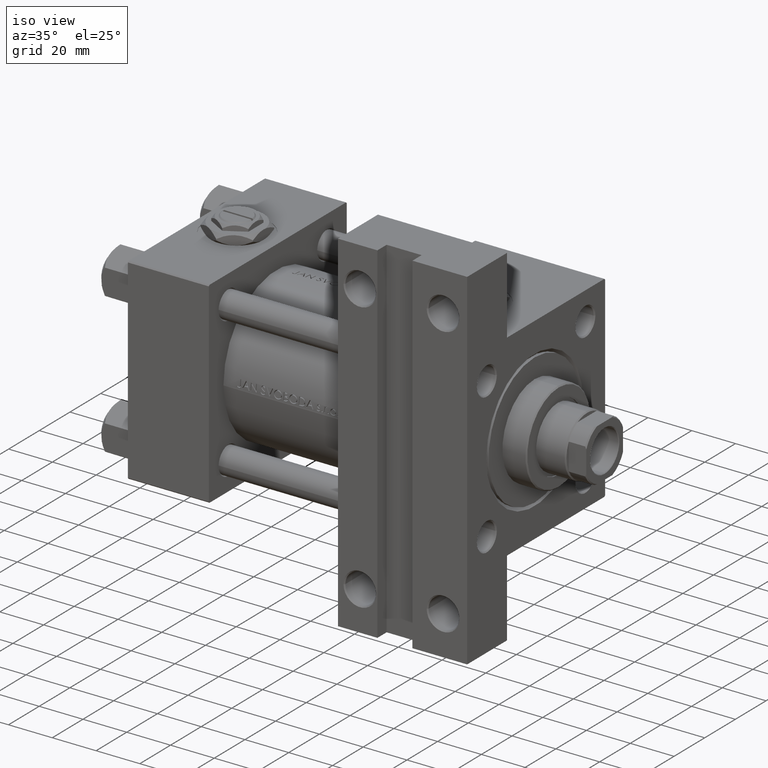
[diagram: clean part render]
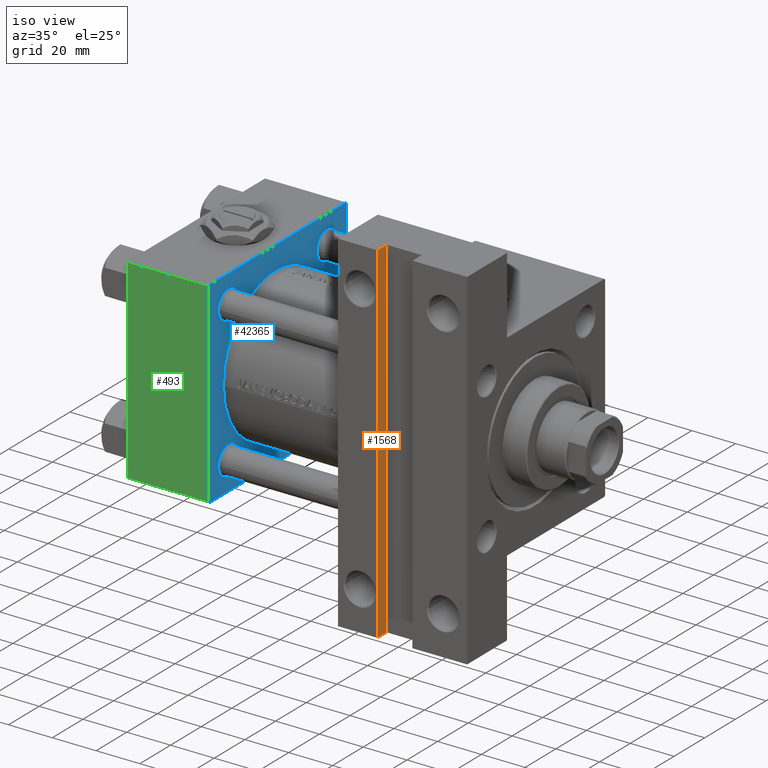
[diagram: same view with three faces highlighted in distinct colors, each labeled with its STEP entity id]
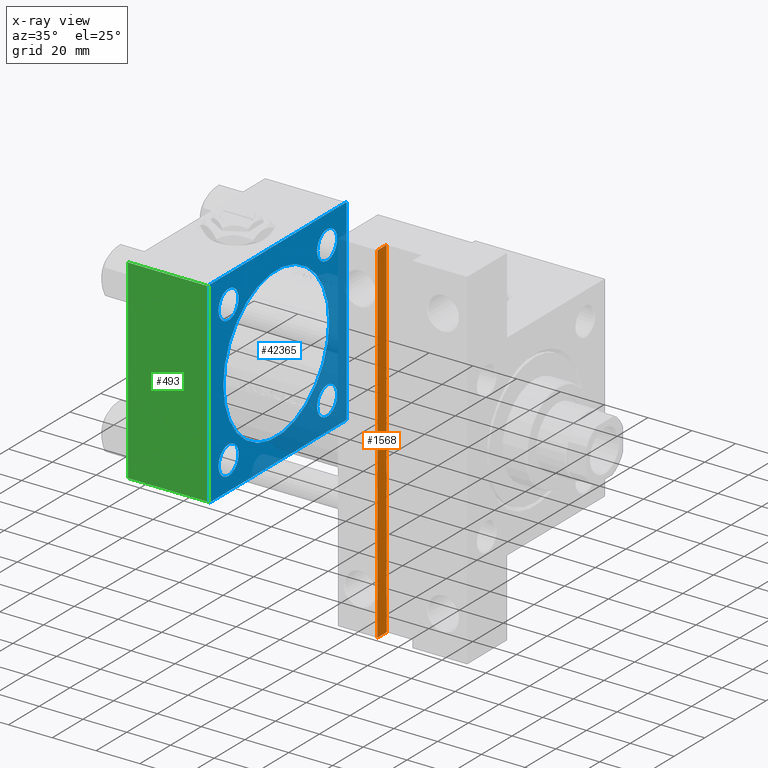
[diagram: x-ray of the same camera — body ghosted, the three highlighted faces saturated]
A machine part, iso view with three faces highlighted in distinct colors.
The next image is the same camera in x-ray (body ghosted, the three faces saturated) — at least one of them is partly hidden behind the body in this view.
Their STEP definitions:

[orange] entity #1568 — the highlighted planar face has unit normal (-1, 0, 0).
#964 = CARTESIAN_POINT ( 'NONE',  ( 113.9999999999999858, 79.99999999999998579, -39.00000000000000000 ) ) ;
#1568 = ADVANCED_FACE ( 'NONE', ( #8367 ), #43071, .F. ) ;
#2350 = DIRECTION ( 'NONE',  ( 0.000000000000000000, 1.000000000000000000, 0.000000000000000000 ) ) ;
#4857 = CARTESIAN_POINT ( 'NONE',  ( 113.9999999999999858, -79.99999999999997158, -39.00000000000000000 ) ) ;
#6117 = CARTESIAN_POINT ( 'NONE',  ( 113.9999999999999858, -79.99999999999997158, -39.00000000000000000 ) ) ;
#7234 = LINE ( 'NONE', #34146, #12975 ) ;
#8270 = EDGE_CURVE ( 'NONE', #25444, #35039, #46247, .T. ) ;
#8367 = FACE_OUTER_BOUND ( 'NONE', #11936, .T. ) ;
#9708 = CARTESIAN_POINT ( 'NONE',  ( 113.9999999999999858, -79.99999999999997158, -39.00000000000000000 ) ) ;
#10248 = ORIENTED_EDGE ( 'NONE', *, *, #37721, .T. ) ;
#10432 = ORIENTED_EDGE ( 'NONE', *, *, #31254, .F. ) ;
#11419 = EDGE_CURVE ( 'NONE', #40653, #39888, #17412, .T. ) ;
#11782 = DIRECTION ( 'NONE',  ( 0.000000000000000000, 1.000000000000000000, 0.000000000000000000 ) ) ;
#11936 = EDGE_LOOP ( 'NONE', ( #27147, #10432, #37205, #10248 ) ) ;
#12513 = CARTESIAN_POINT ( 'NONE',  ( 113.9999999999999858, -79.99999999999997158, -45.00000000000000000 ) ) ;
#12975 = VECTOR ( 'NONE', #48755, 1000.000000000000000 ) ;
#13279 = VECTOR ( 'NONE', #11782, 1000.000000000000000 ) ;
#16767 = DIRECTION ( 'NONE',  ( -0.000000000000000000, -0.000000000000000000, -1.000000000000000000 ) ) ;
#17134 = CARTESIAN_POINT ( 'NONE',  ( 113.9999999999999858, 79.99999999999998579, -45.00000000000000000 ) ) ;
#17412 = LINE ( 'NONE', #6117, #26932 ) ;
#20171 = DIRECTION ( 'NONE',  ( -1.000000000000000000, 0.000000000000000000, 0.000000000000000000 ) ) ;
#20276 = AXIS2_PLACEMENT_3D ( 'NONE', #4857, #20171, #35515 ) ;
#20547 = LINE ( 'NONE', #9708, #23210 ) ;
#23210 = VECTOR ( 'NONE', #16767, 1000.000000000000000 ) ;
#23352 = CARTESIAN_POINT ( 'NONE',  ( 113.9999999999999858, -79.99999999999997158, -45.00000000000000000 ) ) ;
#25444 = VERTEX_POINT ( 'NONE', #23352 ) ;
#26932 = VECTOR ( 'NONE', #2350, 1000.000000000000000 ) ;
#27147 = ORIENTED_EDGE ( 'NONE', *, *, #8270, .T. ) ;
#29696 = CARTESIAN_POINT ( 'NONE',  ( 113.9999999999999858, -79.99999999999997158, -39.00000000000000000 ) ) ;
#31254 = EDGE_CURVE ( 'NONE', #39888, #35039, #7234, .T. ) ;
#34146 = CARTESIAN_POINT ( 'NONE',  ( 113.9999999999999858, 79.99999999999998579, -39.00000000000000000 ) ) ;
#35039 = VERTEX_POINT ( 'NONE', #17134 ) ;
#35515 = DIRECTION ( 'NONE',  ( 0.000000000000000000, 0.000000000000000000, 1.000000000000000000 ) ) ;
#37205 = ORIENTED_EDGE ( 'NONE', *, *, #11419, .F. ) ;
#37721 = EDGE_CURVE ( 'NONE', #40653, #25444, #20547, .T. ) ;
#39888 = VERTEX_POINT ( 'NONE', #964 ) ;
#40653 = VERTEX_POINT ( 'NONE', #29696 ) ;
#43071 = PLANE ( 'NONE',  #20276 ) ;
#46247 = LINE ( 'NONE', #12513, #13279 ) ;
#48755 = DIRECTION ( 'NONE',  ( -0.000000000000000000, -0.000000000000000000, -1.000000000000000000 ) ) ;

[blue] entity #42365 — the highlighted planar face has unit normal (-1, 0, -0).
#562 = CARTESIAN_POINT ( 'NONE',  ( 37.00000000000000000, 44.49999999999998579, 45.00000000000001421 ) ) ;
#638 = DIRECTION ( 'NONE',  ( -1.000000000000000000, 0.000000000000000000, -0.000000000000000000 ) ) ;
#1086 = VERTEX_POINT ( 'NONE', #21102 ) ;
#1459 = DIRECTION ( 'NONE',  ( 0.000000000000000000, 7.709882115452476934E-17, -1.000000000000000000 ) ) ;
#2806 = ORIENTED_EDGE ( 'NONE', *, *, #27510, .F. ) ;
#2972 = AXIS2_PLACEMENT_3D ( 'NONE', #9858, #19405, #41549 ) ;
#3576 = EDGE_CURVE ( 'NONE', #9075, #5254, #17828, .T. ) ;
#3578 = FACE_OUTER_BOUND ( 'NONE', #35426, .T. ) ;
#3943 = LINE ( 'NONE', #4687, #11673 ) ;
#4002 = CARTESIAN_POINT ( 'NONE',  ( 37.00000000000000000, -32.14999999999997726, -38.65000000000004832 ) ) ;
#4127 = AXIS2_PLACEMENT_3D ( 'NONE', #29952, #49332, #14113 ) ;
#4268 = EDGE_CURVE ( 'NONE', #30207, #16894, #20298, .T. ) ;
#4687 = CARTESIAN_POINT ( 'NONE',  ( 37.00000000000000000, 44.99999999999998579, -44.49999999999998579 ) ) ;
#4697 = CARTESIAN_POINT ( 'NONE',  ( 37.00000000000000000, -45.00000000000000711, 44.49999999999997158 ) ) ;
#4850 = EDGE_CURVE ( 'NONE', #46053, #18292, #39006, .T. ) ;
#5233 = CARTESIAN_POINT ( 'NONE',  ( 37.00000000000000000, -45.00000000000000711, 45.00000000000000000 ) ) ;
#5254 = VERTEX_POINT ( 'NONE', #32122 ) ;
#5315 = AXIS2_PLACEMENT_3D ( 'NONE', #44251, #6777, #10026 ) ;
#5934 = DIRECTION ( 'NONE',  ( 1.000000000000000000, -0.000000000000000000, 0.000000000000000000 ) ) ;
#6311 = ORIENTED_EDGE ( 'NONE', *, *, #22808, .T. ) ;
#6397 = EDGE_CURVE ( 'NONE', #47960, #30207, #28551, .T. ) ;
#6777 = DIRECTION ( 'NONE',  ( -1.000000000000000000, 0.000000000000000000, -0.000000000000000000 ) ) ;
#7070 = FACE_BOUND ( 'NONE', #45147, .T. ) ;
#7643 = DIRECTION ( 'NONE',  ( 0.000000000000000000, 0.000000000000000000, 1.000000000000000000 ) ) ;
#8382 = DIRECTION ( 'NONE',  ( 0.000000000000000000, 0.000000000000000000, 1.000000000000000000 ) ) ;
#8393 = CARTESIAN_POINT ( 'NONE',  ( 37.00000000000000000, 32.14999999999999147, -32.15000000000000568 ) ) ;
#8585 = EDGE_CURVE ( 'NONE', #14726, #1086, #3943, .T. ) ;
#9075 = VERTEX_POINT ( 'NONE', #28979 ) ;
#9430 = CARTESIAN_POINT ( 'NONE',  ( 37.00000000000000000, 0.000000000000000000, 33.49999999999998579 ) ) ;
#9613 = CARTESIAN_POINT ( 'NONE',  ( 37.00000000000000000, -44.49999999999995737, 45.00000000000000000 ) ) ;
#9678 = AXIS2_PLACEMENT_3D ( 'NONE', #31023, #39062, #8382 ) ;
#9713 = EDGE_CURVE ( 'NONE', #5254, #9075, #45402, .T. ) ;
#9858 = CARTESIAN_POINT ( 'NONE',  ( 37.00000000000000000, 32.14999999999999147, 32.15000000000000568 ) ) ;
#10026 = DIRECTION ( 'NONE',  ( 0.000000000000000000, 0.000000000000000000, 1.000000000000000000 ) ) ;
#10335 = FACE_BOUND ( 'NONE', #19786, .T. ) ;
#10690 = DIRECTION ( 'NONE',  ( 0.000000000000000000, 0.000000000000000000, 1.000000000000000000 ) ) ;
#10723 = VECTOR ( 'NONE', #1459, 1000.000000000000000 ) ;
#10730 = VERTEX_POINT ( 'NONE', #46254 ) ;
#10793 = DIRECTION ( 'NONE',  ( 0.000000000000000000, -1.000000000000000000, -1.541976423090495387E-16 ) ) ;
#10877 = EDGE_CURVE ( 'NONE', #16894, #21305, #18262, .T. ) ;
#11226 = EDGE_LOOP ( 'NONE', ( #20829, #6311 ) ) ;
#11673 = VECTOR ( 'NONE', #42649, 1000.000000000000114 ) ;
#11696 = VECTOR ( 'NONE', #10793, 1000.000000000000000 ) ;
#12413 = DIRECTION ( 'NONE',  ( 0.000000000000000000, 0.000000000000000000, 1.000000000000000000 ) ) ;
#12442 = CARTESIAN_POINT ( 'NONE',  ( 37.00000000000000000, -32.14999999999997726, 38.65000000000004832 ) ) ;
#12537 = ORIENTED_EDGE ( 'NONE', *, *, #8585, .T. ) ;
#12953 = EDGE_CURVE ( 'NONE', #38530, #47960, #18346, .T. ) ;
#13197 = DIRECTION ( 'NONE',  ( 0.000000000000000000, 0.000000000000000000, -1.000000000000000000 ) ) ;
#13263 = CARTESIAN_POINT ( 'NONE',  ( 37.00000000000000000, -44.49999999999995737, -45.00000000000000000 ) ) ;
#13946 = CARTESIAN_POINT ( 'NONE',  ( 37.00000000000000000, 44.99999999999998579, -44.99999999999998579 ) ) ;
#14064 = LINE ( 'NONE', #34182, #16839 ) ;
#14113 = DIRECTION ( 'NONE',  ( -0.000000000000000000, 0.000000000000000000, 1.000000000000000000 ) ) ;
#14242 = DIRECTION ( 'NONE',  ( 0.000000000000000000, 0.7071067811865474617, -0.7071067811865474617 ) ) ;
#14467 = DIRECTION ( 'NONE',  ( -1.000000000000000000, 0.000000000000000000, -0.000000000000000000 ) ) ;
#14516 = ORIENTED_EDGE ( 'NONE', *, *, #47571, .F. ) ;
#14726 = VERTEX_POINT ( 'NONE', #41478 ) ;
#15237 = CIRCLE ( 'NONE', #30502, 6.500000000000033751 ) ;
#15417 = EDGE_CURVE ( 'NONE', #18292, #46053, #46334, .T. ) ;
#16055 = CARTESIAN_POINT ( 'NONE',  ( 37.00000000000000000, -45.00000000000000000, -44.49999999999995737 ) ) ;
#16066 = AXIS2_PLACEMENT_3D ( 'NONE', #18596, #45271, #18107 ) ;
#16218 = ORIENTED_EDGE ( 'NONE', *, *, #12953, .T. ) ;
#16839 = VECTOR ( 'NONE', #44760, 1000.000000000000114 ) ;
#16894 = VERTEX_POINT ( 'NONE', #16055 ) ;
#17298 = AXIS2_PLACEMENT_3D ( 'NONE', #37745, #33989, #49334 ) ;
#17828 = CIRCLE ( 'NONE', #27571, 6.500000000000033751 ) ;
#17893 = FACE_BOUND ( 'NONE', #11226, .T. ) ;
#18107 = DIRECTION ( 'NONE',  ( 0.000000000000000000, 0.000000000000000000, 1.000000000000000000 ) ) ;
#18208 = DIRECTION ( 'NONE',  ( 0.000000000000000000, -1.000000000000000000, -1.541976423090495633E-16 ) ) ;
#18262 = LINE ( 'NONE', #37141, #33439 ) ;
#18292 = VERTEX_POINT ( 'NONE', #45333 ) ;
#18346 = LINE ( 'NONE', #22144, #11696 ) ;
#18378 = FACE_BOUND ( 'NONE', #32783, .T. ) ;
#18507 = ORIENTED_EDGE ( 'NONE', *, *, #27717, .T. ) ;
#18596 = CARTESIAN_POINT ( 'NONE',  ( 37.00000000000000000, -32.14999999999997726, 32.15000000000001279 ) ) ;
#19405 = DIRECTION ( 'NONE',  ( -1.000000000000000000, 0.000000000000000000, -0.000000000000000000 ) ) ;
#19786 = EDGE_LOOP ( 'NONE', ( #45358, #18507 ) ) ;
#19978 = CIRCLE ( 'NONE', #48118, 34.49999999999999289 ) ;
#20296 = ORIENTED_EDGE ( 'NONE', *, *, #4268, .T. ) ;
#20298 = LINE ( 'NONE', #5233, #10723 ) ;
#20552 = CARTESIAN_POINT ( 'NONE',  ( 37.00000000000000000, 32.14999999999999147, 38.65000000000004121 ) ) ;
#20744 = EDGE_CURVE ( 'NONE', #47263, #1086, #39625, .T. ) ;
#20757 = DIRECTION ( 'NONE',  ( -0.000000000000000000, -0.7071067811865425767, -0.7071067811865524577 ) ) ;
#20829 = ORIENTED_EDGE ( 'NONE', *, *, #37885, .T. ) ;
#21102 = CARTESIAN_POINT ( 'NONE',  ( 37.00000000000000000, 44.99999999999998579, -44.49999999999995737 ) ) ;
#21251 = LINE ( 'NONE', #13946, #38669 ) ;
#21305 = VERTEX_POINT ( 'NONE', #13263 ) ;
#21307 = CARTESIAN_POINT ( 'NONE',  ( 37.00000000000000000, 44.99999999999998579, 44.50000000000001421 ) ) ;
#21585 = VERTEX_POINT ( 'NONE', #9430 ) ;
#21622 = EDGE_CURVE ( 'NONE', #43805, #21585, #19978, .T. ) ;
#21714 = CIRCLE ( 'NONE', #9678, 6.500000000000033751 ) ;
#22144 = CARTESIAN_POINT ( 'NONE',  ( 37.00000000000000000, 44.99999999999998579, 45.00000000000001421 ) ) ;
#22808 = EDGE_CURVE ( 'NONE', #38546, #42696, #15237, .T. ) ;
#22863 = ORIENTED_EDGE ( 'NONE', *, *, #21622, .F. ) ;
#23421 = EDGE_CURVE ( 'NONE', #10730, #34458, #26520, .T. ) ;
#25733 = AXIS2_PLACEMENT_3D ( 'NONE', #36573, #47663, #28531 ) ;
#26520 = CIRCLE ( 'NONE', #16066, 6.500000000000033751 ) ;
#27254 = DIRECTION ( 'NONE',  ( -1.000000000000000000, 0.000000000000000000, -0.000000000000000000 ) ) ;
#27510 = EDGE_CURVE ( 'NONE', #21585, #43805, #46642, .T. ) ;
#27571 = AXIS2_PLACEMENT_3D ( 'NONE', #8393, #27254, #7643 ) ;
#27578 = ORIENTED_EDGE ( 'NONE', *, *, #10877, .T. ) ;
#27717 = EDGE_CURVE ( 'NONE', #34458, #10730, #21714, .T. ) ;
#28104 = ORIENTED_EDGE ( 'NONE', *, *, #20744, .F. ) ;
#28531 = DIRECTION ( 'NONE',  ( 0.000000000000000000, 0.000000000000000000, 1.000000000000000000 ) ) ;
#28551 = LINE ( 'NONE', #4697, #41473 ) ;
#28979 = CARTESIAN_POINT ( 'NONE',  ( 37.00000000000000000, 32.14999999999999147, -38.65000000000004121 ) ) ;
#29070 = ORIENTED_EDGE ( 'NONE', *, *, #15417, .T. ) ;
#29952 = CARTESIAN_POINT ( 'NONE',  ( 37.00000000000000000, 0.000000000000000000, 0.000000000000000000 ) ) ;
#30207 = VERTEX_POINT ( 'NONE', #34704 ) ;
#30502 = AXIS2_PLACEMENT_3D ( 'NONE', #31777, #638, #12413 ) ;
#31023 = CARTESIAN_POINT ( 'NONE',  ( 37.00000000000000000, -32.14999999999997726, 32.15000000000001279 ) ) ;
#31777 = CARTESIAN_POINT ( 'NONE',  ( 37.00000000000000000, -32.14999999999997726, -32.15000000000001279 ) ) ;
#32122 = CARTESIAN_POINT ( 'NONE',  ( 37.00000000000000000, 32.14999999999999147, -25.64999999999997016 ) ) ;
#32783 = EDGE_LOOP ( 'NONE', ( #49519, #35436 ) ) ;
#33247 = PLANE ( 'NONE',  #4127 ) ;
#33439 = VECTOR ( 'NONE', #14242, 1000.000000000000114 ) ;
#33729 = FACE_BOUND ( 'NONE', #48131, .T. ) ;
#33989 = DIRECTION ( 'NONE',  ( -1.000000000000000000, 0.000000000000000000, -0.000000000000000000 ) ) ;
#34182 = CARTESIAN_POINT ( 'NONE',  ( 37.00000000000000000, 44.49999999999998579, 45.00000000000001421 ) ) ;
#34458 = VERTEX_POINT ( 'NONE', #12442 ) ;
#34485 = CARTESIAN_POINT ( 'NONE',  ( 37.00000000000000000, -32.14999999999997726, -25.64999999999997726 ) ) ;
#34704 = CARTESIAN_POINT ( 'NONE',  ( 37.00000000000000000, -45.00000000000000711, 44.49999999999997158 ) ) ;
#35426 = EDGE_LOOP ( 'NONE', ( #14516, #12537, #28104, #42135, #16218, #41614, #20296, #27578 ) ) ;
#35436 = ORIENTED_EDGE ( 'NONE', *, *, #9713, .T. ) ;
#35604 = CARTESIAN_POINT ( 'NONE',  ( 37.00000000000000000, 4.225031457058367344E-15, -35.50000000000000711 ) ) ;
#36573 = CARTESIAN_POINT ( 'NONE',  ( 37.00000000000000000, 0.000000000000000000, -1.000000000000007772 ) ) ;
#37141 = CARTESIAN_POINT ( 'NONE',  ( 37.00000000000000000, -44.49999999999998579, -45.00000000000000000 ) ) ;
#37745 = CARTESIAN_POINT ( 'NONE',  ( 37.00000000000000000, 32.14999999999999147, 32.15000000000000568 ) ) ;
#37885 = EDGE_CURVE ( 'NONE', #42696, #38546, #45757, .T. ) ;
#38530 = VERTEX_POINT ( 'NONE', #562 ) ;
#38546 = VERTEX_POINT ( 'NONE', #34485 ) ;
#38669 = VECTOR ( 'NONE', #18208, 1000.000000000000000 ) ;
#39006 = CIRCLE ( 'NONE', #17298, 6.500000000000033751 ) ;
#39062 = DIRECTION ( 'NONE',  ( -1.000000000000000000, 0.000000000000000000, -0.000000000000000000 ) ) ;
#39625 = LINE ( 'NONE', #40116, #43297 ) ;
#40116 = CARTESIAN_POINT ( 'NONE',  ( 37.00000000000000000, 44.99999999999998579, 45.00000000000001421 ) ) ;
#41473 = VECTOR ( 'NONE', #20757, 1000.000000000000114 ) ;
#41478 = CARTESIAN_POINT ( 'NONE',  ( 37.00000000000000000, 44.49999999999998579, -44.99999999999998579 ) ) ;
#41549 = DIRECTION ( 'NONE',  ( 0.000000000000000000, 0.000000000000000000, 1.000000000000000000 ) ) ;
#41614 = ORIENTED_EDGE ( 'NONE', *, *, #6397, .T. ) ;
#42135 = ORIENTED_EDGE ( 'NONE', *, *, #43296, .T. ) ;
#42365 = ADVANCED_FACE ( 'NONE', ( #17893, #18378, #10335, #7070, #33729, #3578 ), #33247, .F. ) ;
#42649 = DIRECTION ( 'NONE',  ( -0.000000000000000000, 0.7071067811865474617, 0.7071067811865474617 ) ) ;
#42696 = VERTEX_POINT ( 'NONE', #4002 ) ;
#42735 = ORIENTED_EDGE ( 'NONE', *, *, #4850, .T. ) ;
#43296 = EDGE_CURVE ( 'NONE', #47263, #38530, #14064, .T. ) ;
#43297 = VECTOR ( 'NONE', #13197, 1000.000000000000000 ) ;
#43651 = CARTESIAN_POINT ( 'NONE',  ( 37.00000000000000000, 0.000000000000000000, -1.000000000000007772 ) ) ;
#43805 = VERTEX_POINT ( 'NONE', #35604 ) ;
#44138 = DIRECTION ( 'NONE',  ( 0.000000000000000000, 0.000000000000000000, 1.000000000000000000 ) ) ;
#44251 = CARTESIAN_POINT ( 'NONE',  ( 37.00000000000000000, 32.14999999999999147, -32.15000000000000568 ) ) ;
#44760 = DIRECTION ( 'NONE',  ( 0.000000000000000000, -0.7071067811865474617, 0.7071067811865474617 ) ) ;
#45147 = EDGE_LOOP ( 'NONE', ( #29070, #42735 ) ) ;
#45271 = DIRECTION ( 'NONE',  ( -1.000000000000000000, 0.000000000000000000, -0.000000000000000000 ) ) ;
#45333 = CARTESIAN_POINT ( 'NONE',  ( 37.00000000000000000, 32.14999999999999147, 25.64999999999997016 ) ) ;
#45358 = ORIENTED_EDGE ( 'NONE', *, *, #23421, .T. ) ;
#45402 = CIRCLE ( 'NONE', #5315, 6.500000000000033751 ) ;
#45757 = CIRCLE ( 'NONE', #46557, 6.500000000000033751 ) ;
#46053 = VERTEX_POINT ( 'NONE', #20552 ) ;
#46254 = CARTESIAN_POINT ( 'NONE',  ( 37.00000000000000000, -32.14999999999997726, 25.64999999999997726 ) ) ;
#46334 = CIRCLE ( 'NONE', #2972, 6.500000000000033751 ) ;
#46557 = AXIS2_PLACEMENT_3D ( 'NONE', #49196, #14467, #10690 ) ;
#46642 = CIRCLE ( 'NONE', #25733, 34.49999999999999289 ) ;
#47263 = VERTEX_POINT ( 'NONE', #21307 ) ;
#47571 = EDGE_CURVE ( 'NONE', #14726, #21305, #21251, .T. ) ;
#47663 = DIRECTION ( 'NONE',  ( 1.000000000000000000, -0.000000000000000000, 0.000000000000000000 ) ) ;
#47960 = VERTEX_POINT ( 'NONE', #9613 ) ;
#48118 = AXIS2_PLACEMENT_3D ( 'NONE', #43651, #5934, #44138 ) ;
#48131 = EDGE_LOOP ( 'NONE', ( #2806, #22863 ) ) ;
#49196 = CARTESIAN_POINT ( 'NONE',  ( 37.00000000000000000, -32.14999999999997726, -32.15000000000001279 ) ) ;
#49332 = DIRECTION ( 'NONE',  ( -1.000000000000000000, 0.000000000000000000, -0.000000000000000000 ) ) ;
#49334 = DIRECTION ( 'NONE',  ( 0.000000000000000000, 0.000000000000000000, 1.000000000000000000 ) ) ;
#49519 = ORIENTED_EDGE ( 'NONE', *, *, #3576, .T. ) ;

[green] entity #493 — the highlighted planar face has unit normal (0, -1, -0).
#493 = ADVANCED_FACE ( 'NONE', ( #42478 ), #8513, .T. ) ;
#805 = VECTOR ( 'NONE', #22792, 1000.000000000000000 ) ;
#3199 = LINE ( 'NONE', #22050, #805 ) ;
#6177 = DIRECTION ( 'NONE',  ( 1.000000000000000000, 0.000000000000000000, 0.000000000000000000 ) ) ;
#7604 = VERTEX_POINT ( 'NONE', #10935 ) ;
#8513 = PLANE ( 'NONE',  #44335 ) ;
#10410 = CARTESIAN_POINT ( 'NONE',  ( 37.00000000000000000, 44.49999999999998579, -44.99999999999998579 ) ) ;
#10935 = CARTESIAN_POINT ( 'NONE',  ( 0.000000000000000000, 44.49999999999998579, -44.99999999999998579 ) ) ;
#12113 = CARTESIAN_POINT ( 'NONE',  ( 0.000000000000000000, 44.99999999999998579, -44.99999999999998579 ) ) ;
#13263 = CARTESIAN_POINT ( 'NONE',  ( 37.00000000000000000, -44.49999999999995737, -45.00000000000000000 ) ) ;
#13946 = CARTESIAN_POINT ( 'NONE',  ( 37.00000000000000000, 44.99999999999998579, -44.99999999999998579 ) ) ;
#14078 = VERTEX_POINT ( 'NONE', #21336 ) ;
#14726 = VERTEX_POINT ( 'NONE', #41478 ) ;
#15309 = DIRECTION ( 'NONE',  ( 0.000000000000000000, 1.541976423090495880E-16, -1.000000000000000000 ) ) ;
#16375 = LINE ( 'NONE', #12113, #20890 ) ;
#17060 = ORIENTED_EDGE ( 'NONE', *, *, #23092, .F. ) ;
#18208 = DIRECTION ( 'NONE',  ( 0.000000000000000000, -1.000000000000000000, -1.541976423090495633E-16 ) ) ;
#20890 = VECTOR ( 'NONE', #26961, 1000.000000000000000 ) ;
#21251 = LINE ( 'NONE', #13946, #38669 ) ;
#21305 = VERTEX_POINT ( 'NONE', #13263 ) ;
#21336 = CARTESIAN_POINT ( 'NONE',  ( 0.000000000000000000, -44.49999999999995737, -45.00000000000000000 ) ) ;
#22050 = CARTESIAN_POINT ( 'NONE',  ( 0.000000000000000000, -44.49999999999998579, -45.00000000000000000 ) ) ;
#22792 = DIRECTION ( 'NONE',  ( -1.000000000000000000, 0.000000000000000000, 0.000000000000000000 ) ) ;
#23092 = EDGE_CURVE ( 'NONE', #7604, #14078, #16375, .T. ) ;
#23434 = VECTOR ( 'NONE', #6177, 1000.000000000000000 ) ;
#26961 = DIRECTION ( 'NONE',  ( 0.000000000000000000, -1.000000000000000000, -1.541976423090495633E-16 ) ) ;
#34188 = DIRECTION ( 'NONE',  ( 0.000000000000000000, 1.000000000000000000, 1.541976423090495880E-16 ) ) ;
#37955 = CARTESIAN_POINT ( 'NONE',  ( 37.00000000000000000, 44.99999999999998579, -44.99999999999998579 ) ) ;
#38641 = EDGE_CURVE ( 'NONE', #21305, #14078, #3199, .T. ) ;
#38669 = VECTOR ( 'NONE', #18208, 1000.000000000000000 ) ;
#41266 = ORIENTED_EDGE ( 'NONE', *, *, #47624, .T. ) ;
#41478 = CARTESIAN_POINT ( 'NONE',  ( 37.00000000000000000, 44.49999999999998579, -44.99999999999998579 ) ) ;
#42478 = FACE_OUTER_BOUND ( 'NONE', #48863, .T. ) ;
#44335 = AXIS2_PLACEMENT_3D ( 'NONE', #37955, #15309, #34188 ) ;
#44880 = LINE ( 'NONE', #10410, #23434 ) ;
#45497 = ORIENTED_EDGE ( 'NONE', *, *, #38641, .T. ) ;
#46953 = ORIENTED_EDGE ( 'NONE', *, *, #47571, .T. ) ;
#47571 = EDGE_CURVE ( 'NONE', #14726, #21305, #21251, .T. ) ;
#47624 = EDGE_CURVE ( 'NONE', #7604, #14726, #44880, .T. ) ;
#48863 = EDGE_LOOP ( 'NONE', ( #17060, #41266, #46953, #45497 ) ) ;